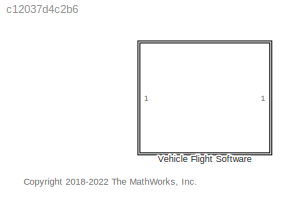
MODEL slx_c12037d4c2b6
KIND library
CONFIG AbsTol = auto
CONFIG EnableMultiTasking = off
CONFIG FixedStep = auto
CONFIG MaxStep = auto
CONFIG MinStep = auto
CONFIG RelTol = 1e-3
CONFIG SampleTimeConstraint = Unconstrained
CONFIG SolverName = VariableStepAuto
CONFIG StartTime = 0.0
CONFIG StopTime = 10.0
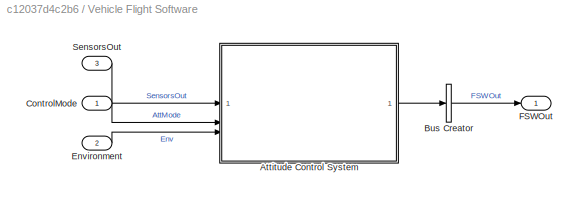
BLOCK [SubSystem] Vehicle Flight Software
BLOCK [ModelReference] Vehicle Flight Software/Attitude Control System
  ModelNameDialog = asbCubeSatACS.slx
  ModelReferenceVersion = 7.0
BLOCK [BusCreator] Vehicle Flight Software/Bus Creator
  DisplayOption = bar
  InheritFromInputs = on
  Inputs = 1
  NonVirtualBus = on
  OutDataTypeStr = Bus: FCSOutBus
BLOCK [Inport] Vehicle Flight Software/ControlMode
BLOCK [Inport] Vehicle Flight Software/Environment
  Port = 2
BLOCK [Outport] Vehicle Flight Software/FSWOut
  OutDataTypeStr = Bus: FCSOutBus
  VectorParamsAs1DForOutWhenUnconnected = off
BLOCK [Inport] Vehicle Flight Software/SensorsOut
  OutDataTypeStr = Bus: StatesOutBus
  Port = 3
ANNOTATION (root): <copyright redacted>
LINE Vehicle Flight Software/Attitude Control System:1 -> Vehicle Flight Software/Bus Creator:1
LINE Vehicle Flight Software/Bus Creator:1 -> Vehicle Flight Software/FSWOut:1
LINE Vehicle Flight Software/ControlMode:1 -> Vehicle Flight Software/Attitude Control System:2
LINE Vehicle Flight Software/Environment:1 -> Vehicle Flight Software/Attitude Control System:3
LINE Vehicle Flight Software/SensorsOut:1 -> Vehicle Flight Software/Attitude Control System:1
